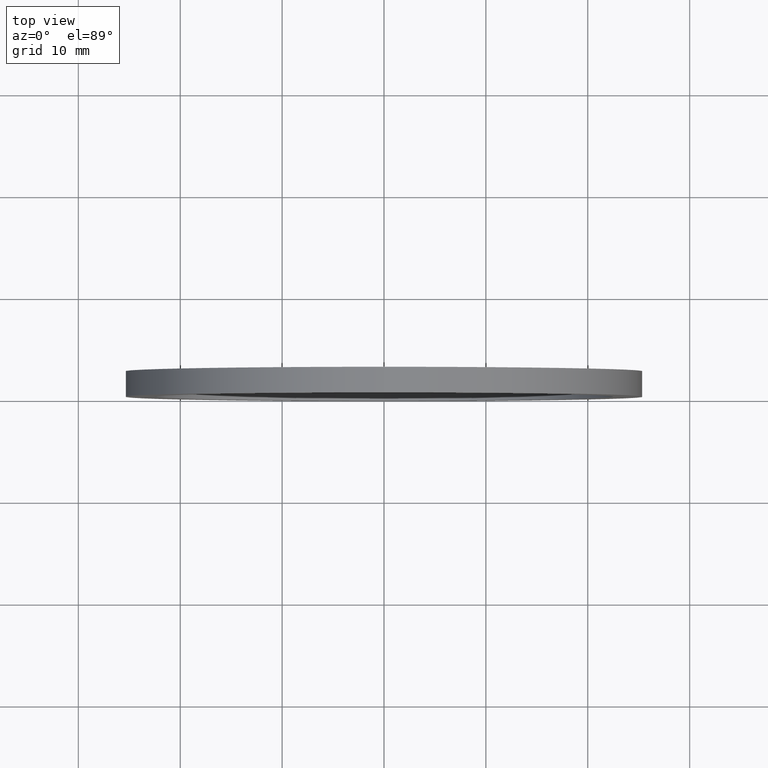
[diagram: clean part render]
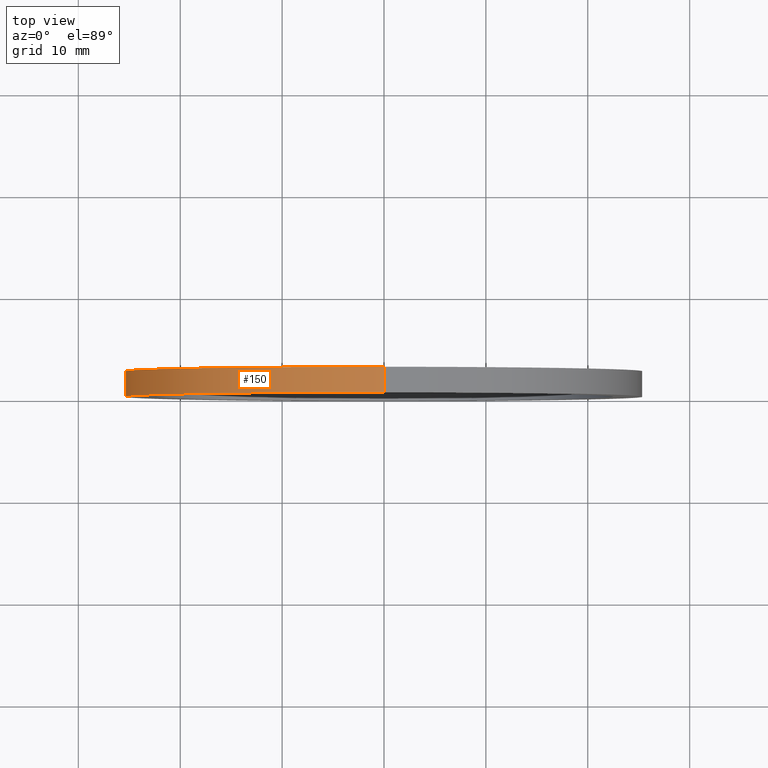
[diagram: same view with one face highlighted and labeled with its STEP entity id]
A machine part, top view. The second image highlights one B-rep face of the part: STEP entity #150.
In plain terms, the highlighted cylindrical surface (partial cylindrical patch) has radius 25.4 mm, axis along (-0, 1, -0).
Its self-contained STEP definition (entity closure, byte-faithful):
#15 = DIRECTION ( 'NONE',  ( -0.0000000000000000000, 1.000000000000000000, -0.0000000000000000000 ) ) ;
#19 = VECTOR ( 'NONE', #201, 1000.000000000000000 ) ;
#20 = VERTEX_POINT ( 'NONE', #79 ) ;
#35 = DIRECTION ( 'NONE',  ( 0.0000000000000000000, 0.0000000000000000000, 1.000000000000000000 ) ) ;
#37 = AXIS2_PLACEMENT_3D ( 'NONE', #229, #108, #110 ) ;
#39 = VERTEX_POINT ( 'NONE', #158 ) ;
#44 = LINE ( 'NONE', #85, #131 ) ;
#53 = CARTESIAN_POINT ( 'NONE',  ( 0.0000000000000000000, 0.0000000000000000000, 0.0000000000000000000 ) ) ;
#55 = DIRECTION ( 'NONE',  ( 0.0000000000000000000, 0.0000000000000000000, 1.000000000000000000 ) ) ;
#67 = AXIS2_PLACEMENT_3D ( 'NONE', #162, #15, #35 ) ;
#68 = ORIENTED_EDGE ( 'NONE', *, *, #216, .F. ) ;
#74 = FACE_OUTER_BOUND ( 'NONE', #78, .T. ) ;
#78 = EDGE_LOOP ( 'NONE', ( #80, #119, #215, #68 ) ) ;
#79 = CARTESIAN_POINT ( 'NONE',  ( 0.0000000000000000000, 0.0000000000000000000, 25.40000000000000900 ) ) ;
#80 = ORIENTED_EDGE ( 'NONE', *, *, #133, .F. ) ;
#85 = CARTESIAN_POINT ( 'NONE',  ( 0.0000000000000000000, 77.14414226561778800, 25.40000000000000900 ) ) ;
#107 = CARTESIAN_POINT ( 'NONE',  ( 3.110602869834278000E-015, 2.500000000000002200, -25.40000000000000900 ) ) ;
#108 = DIRECTION ( 'NONE',  ( -0.0000000000000000000, 1.000000000000000000, -0.0000000000000000000 ) ) ;
#110 = DIRECTION ( 'NONE',  ( 0.0000000000000000000, 0.0000000000000000000, 1.000000000000000000 ) ) ;
#114 = CIRCLE ( 'NONE', #37, 25.40000000000000900 ) ;
#119 = ORIENTED_EDGE ( 'NONE', *, *, #204, .T. ) ;
#122 = DIRECTION ( 'NONE',  ( -0.0000000000000000000, 1.000000000000000000, -0.0000000000000000000 ) ) ;
#131 = VECTOR ( 'NONE', #122, 1000.000000000000000 ) ;
#133 = EDGE_CURVE ( 'NONE', #39, #233, #235, .T. ) ;
#139 = CARTESIAN_POINT ( 'NONE',  ( 0.0000000000000000000, 2.500000000000002200, 25.40000000000000900 ) ) ;
#150 = ADVANCED_FACE ( 'NONE', ( #74 ), #151, .T. ) ;
#151 = CYLINDRICAL_SURFACE ( 'NONE', #67, 25.40000000000000900 ) ;
#158 = CARTESIAN_POINT ( 'NONE',  ( 3.110602869834278000E-015, 0.0000000000000000000, -25.40000000000000900 ) ) ;
#162 = CARTESIAN_POINT ( 'NONE',  ( 0.0000000000000000000, 77.14414226561778800, 0.0000000000000000000 ) ) ;
#172 = AXIS2_PLACEMENT_3D ( 'NONE', #53, #185, #55 ) ;
#174 = CIRCLE ( 'NONE', #172, 25.40000000000000900 ) ;
#175 = VERTEX_POINT ( 'NONE', #139 ) ;
#180 = CARTESIAN_POINT ( 'NONE',  ( 3.110602869834278000E-015, 77.14414226561778800, -25.40000000000000900 ) ) ;
#185 = DIRECTION ( 'NONE',  ( -0.0000000000000000000, 1.000000000000000000, -0.0000000000000000000 ) ) ;
#201 = DIRECTION ( 'NONE',  ( -0.0000000000000000000, 1.000000000000000000, -0.0000000000000000000 ) ) ;
#204 = EDGE_CURVE ( 'NONE', #39, #20, #174, .T. ) ;
#215 = ORIENTED_EDGE ( 'NONE', *, *, #221, .T. ) ;
#216 = EDGE_CURVE ( 'NONE', #233, #175, #114, .T. ) ;
#221 = EDGE_CURVE ( 'NONE', #20, #175, #44, .T. ) ;
#229 = CARTESIAN_POINT ( 'NONE',  ( 0.0000000000000000000, 2.500000000000002200, 0.0000000000000000000 ) ) ;
#233 = VERTEX_POINT ( 'NONE', #107 ) ;
#235 = LINE ( 'NONE', #180, #19 ) ;